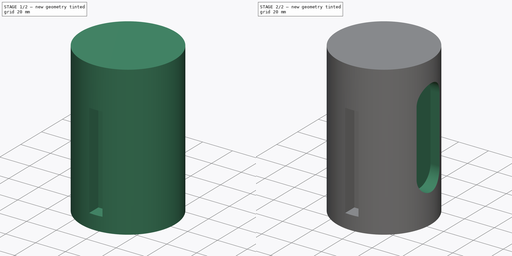
[diagram: build sequence overview — one tinted view per stage of 2, left to right]
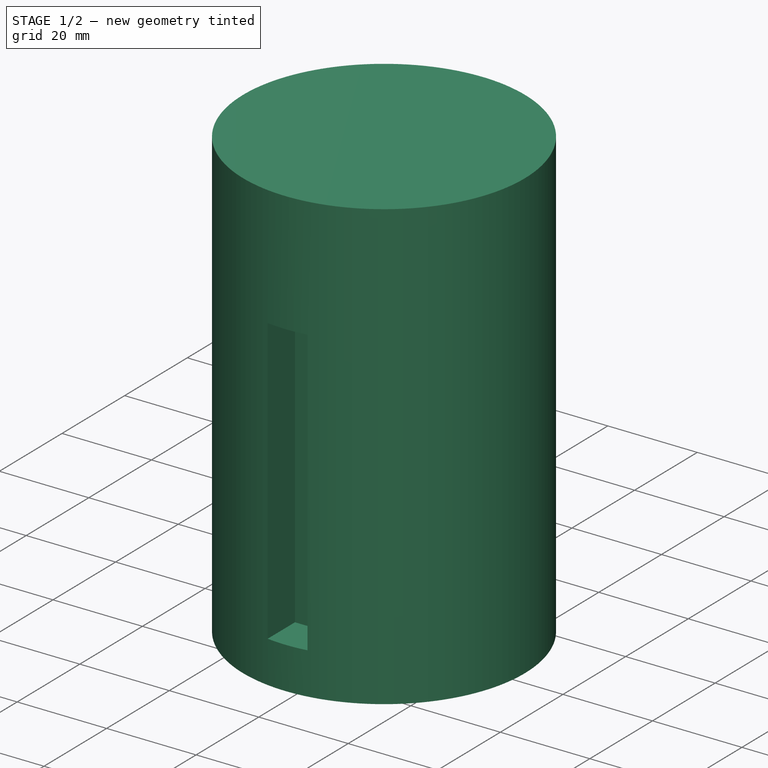
[diagram: stage 1 of 2 — iso view after this stage's code; geometry added in this stage tinted green]
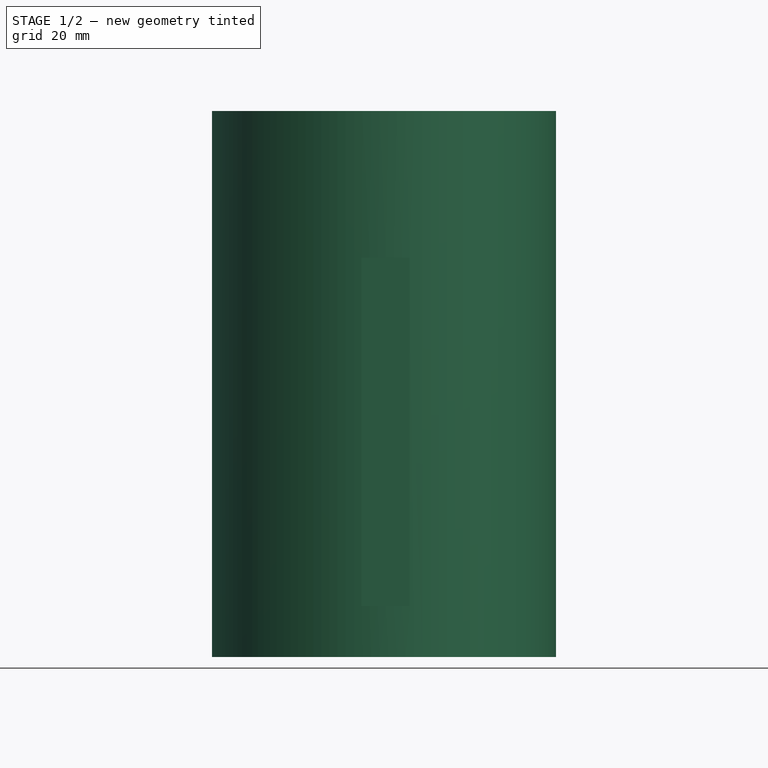
[diagram: stage 1 of 2 — front view after this stage's code; geometry added in this stage tinted green]
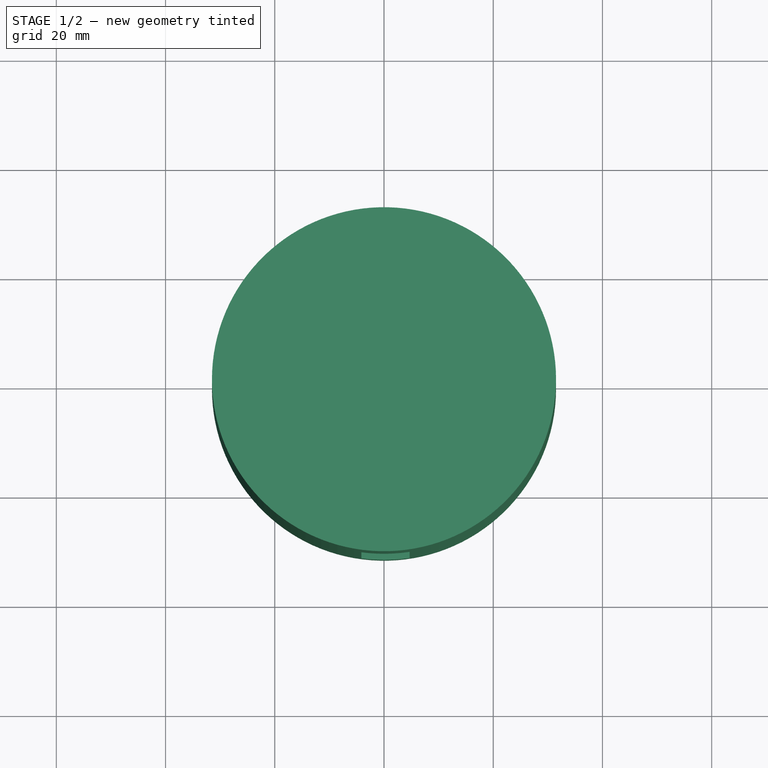
[diagram: stage 1 of 2 — top view after this stage's code; geometry added in this stage tinted green]
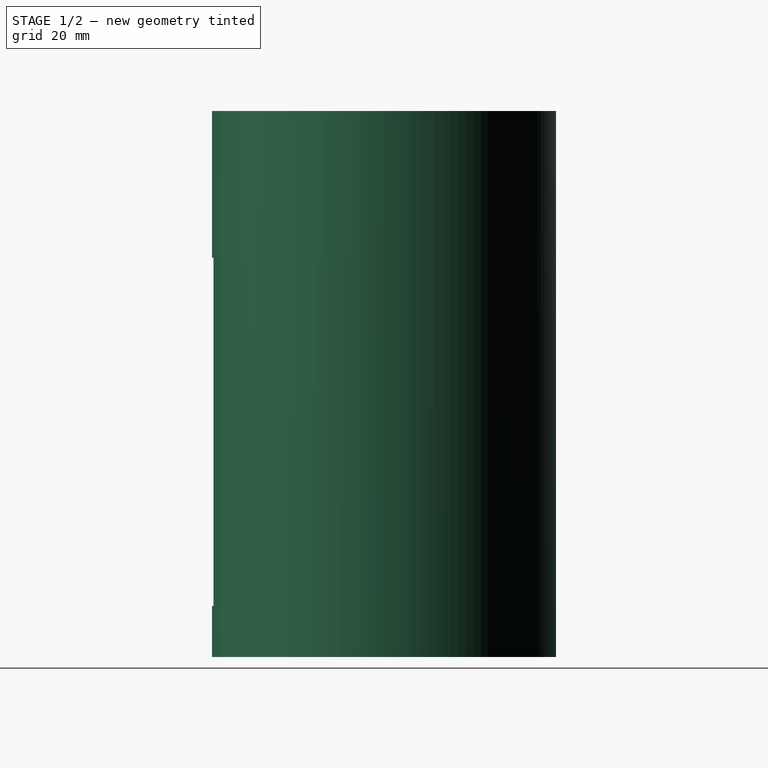
[diagram: stage 1 of 2 — right view after this stage's code; geometry added in this stage tinted green]
FCSTD DOCUMENT  (FreeCAD 0.21R33771 (Git))
Label: shponpaz
License: All rights reserved
LicenseURL: http://en.wikipedia.org/wiki/All_rights_reserved
objects: Sketcher::SketchObject×3, PartDesign::Pocket×2, PartDesign::Pad×1, PartDesign::Body×1
note: 10 computed .brp shape members not serialized (recipe doc carries the construction recipe); baked Part::Feature solids carry a one-line shape summary decoded from their .brp

FEATURE [Sketcher::SketchObject] Sketch
  FullyConstrained = false
  MapMode = 2
  Support = -> [Sketch]
  sketch-geometry (1):
    g0: Circle CenterX=0 CenterY=0 CenterZ=0 NormalX=0 NormalY=0 NormalZ=1 AngleXU=0 Radius=31.5019
  constraints (1):
    c: Coincident(g0,g-1)
FEATURE [PartDesign::Pad] Pad
  Direction = (0,0,1)
  Length = 100
  Length2 = 10
  Profile = -> Sketch
  ReferenceAxis = -> Sketch [N_Axis]
  Refine = true
  Type = 0
FEATURE [Sketcher::SketchObject] Sketch001
  AttachmentOffset = pos=(-2,0,31) rot=(0,0,1;0rad)
  FullyConstrained = false
  MapMode = 3
  Placement = pos=(-2,-31,6.9e-15) rot=(1,0,0;1.5708rad)
  Support = -> [Sketch]
  sketch-geometry (5):
    g0: LineSegment StartX=-2.14905 StartY=73.1214 StartZ=0 EndX=-2.14905 EndY=9.34768 EndZ=0
    g1: LineSegment StartX=-2.14905 StartY=9.34768 StartZ=0 EndX=6.70286 EndY=9.34768 EndZ=0
    g2: LineSegment StartX=6.70286 StartY=9.34768 StartZ=0 EndX=6.70286 EndY=73.1214 EndZ=0
    g3: LineSegment StartX=6.70286 StartY=73.1214 StartZ=0 EndX=-2.14905 EndY=73.1214 EndZ=0
    g4: GeomPoint X=2.27691 Y=41.2345 Z=0
  constraints (9):
    c: Coincident(g0,g1)
    c: Coincident(g1,g2)
    c: Coincident(g2,g3)
    c: Coincident(g3,g0)
    c: Horizontal(g1)
    c: Horizontal(g3)
    c: Vertical(g0)
    c: Vertical(g2)
    c: Symmetric(g1,g0,g4)
FEATURE [PartDesign::Pocket] Pocket
  AlongSketchNormal = false
  BaseFeature = -> Pad
  Direction = (0,1,-2e-16)
  Length = 17
  Length2 = 5
  Midplane = true
  Profile = -> Sketch001
  ReferenceAxis = -> Sketch001 [N_Axis]
  Refine = true
  Type = 0
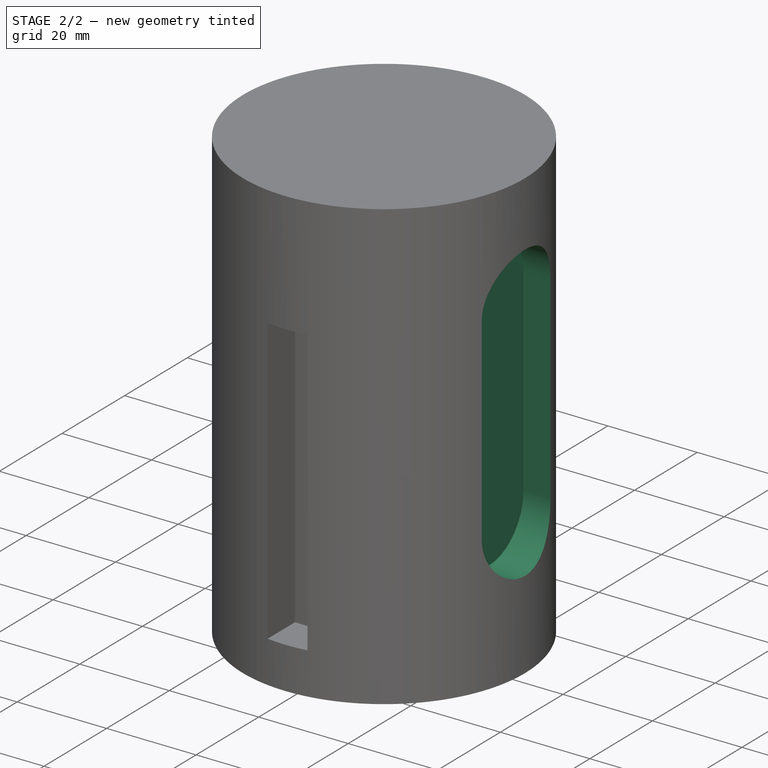
[diagram: stage 2 of 2 — iso view after this stage's code; geometry added in this stage tinted green]
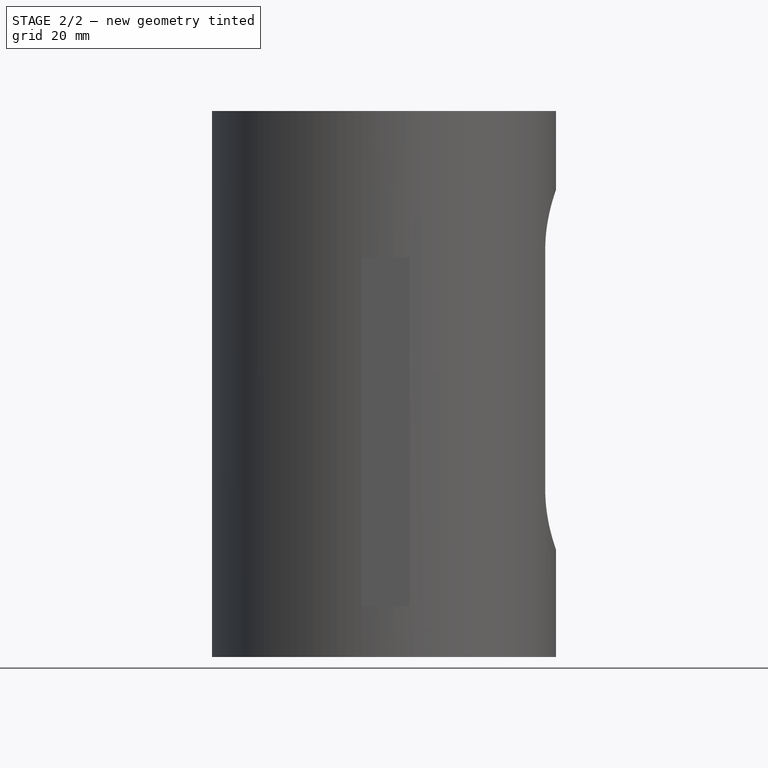
[diagram: stage 2 of 2 — front view after this stage's code; geometry added in this stage tinted green]
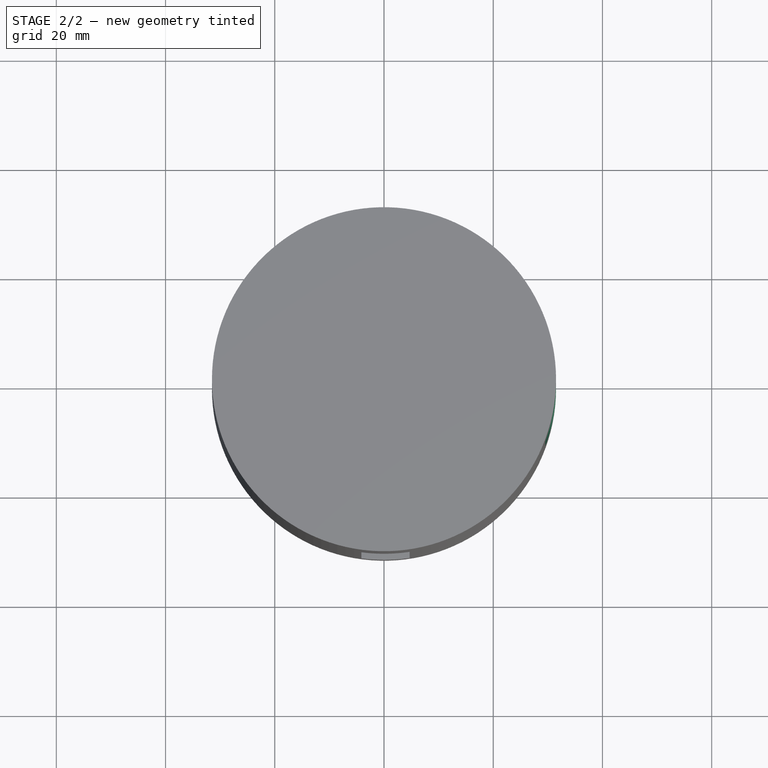
[diagram: stage 2 of 2 — top view after this stage's code; geometry added in this stage tinted green]
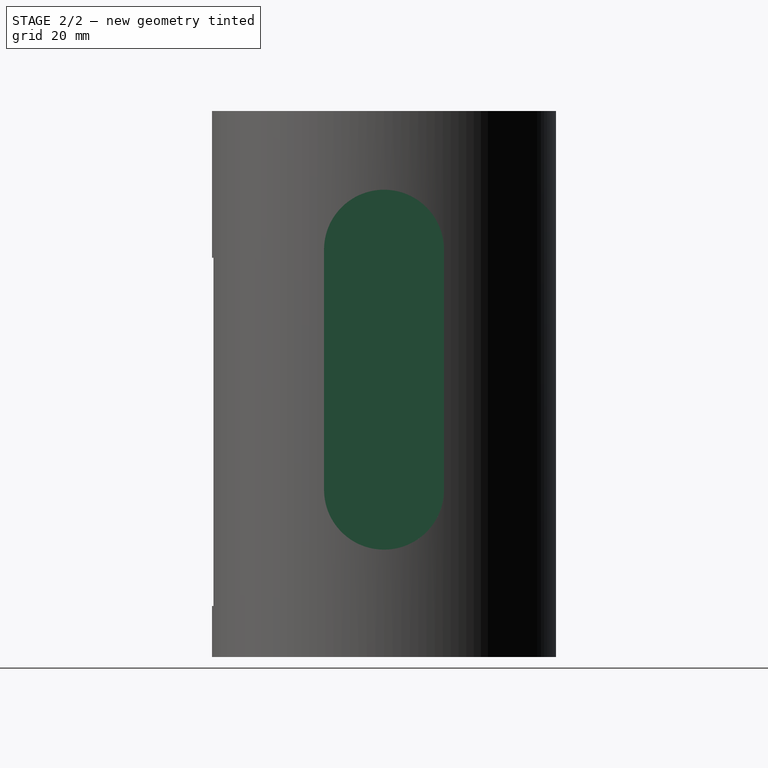
[diagram: stage 2 of 2 — right view after this stage's code; geometry added in this stage tinted green]
FEATURE [Sketcher::SketchObject] Sketch002
  AttachmentOffset = pos=(0,0,31) rot=(0,0,1;0rad)
  FullyConstrained = false
  MapMode = 5
  Placement = pos=(31,-6.9e-15,6.9e-15) rot=(0.57735,0.57735,0.57735;2.0944rad)
  Support = -> [YZ_Plane]
  sketch-geometry (4):
    g0: ArcOfCircle CenterX=0 CenterY=74.5899 CenterZ=0 NormalX=0 NormalY=0 NormalZ=1 AngleXU=0 Radius=10.9839 StartAngle=7.5e-15 EndAngle=3.14159
    g1: ArcOfCircle CenterX=3.295e-13 CenterY=30.6542 CenterZ=0 NormalX=0 NormalY=0 NormalZ=1 AngleXU=0 Radius=10.9839 StartAngle=3.14159 EndAngle=6.28319
    g2: LineSegment StartX=-10.9839 StartY=74.5899 StartZ=0 EndX=-10.9839 EndY=30.6542 EndZ=0
    g3: LineSegment StartX=10.9839 StartY=30.6542 StartZ=0 EndX=10.9839 EndY=74.5899 EndZ=0
  constraints (7):
    c: Tangent(g0,g2) = -1.5708
    c: Tangent(g2,g1) = -1.5708
    c: Tangent(g1,g3) = -1.5708
    c: Tangent(g3,g0) = -1.5708
    c: Equal(g0,g1)
    c: PointOnObject(g0,g-2)
    c: PointOnObject(g1,g-2)
FEATURE [PartDesign::Pocket] Pocket001
  BaseFeature = -> Pocket
  Direction = (-1,2e-16,-3e-16)
  Length = 15
  Length2 = 5
  Midplane = true
  Profile = -> Sketch002
  ReferenceAxis = -> Sketch002 [N_Axis]
  Refine = true
  Type = 0
FEATURE [PartDesign::Body] Body
  Group = -> [Sketch,Pad,Sketch001,Pocket,Sketch002,Pocket001]
  Origin = -> Origin
  Tip = -> Pocket001
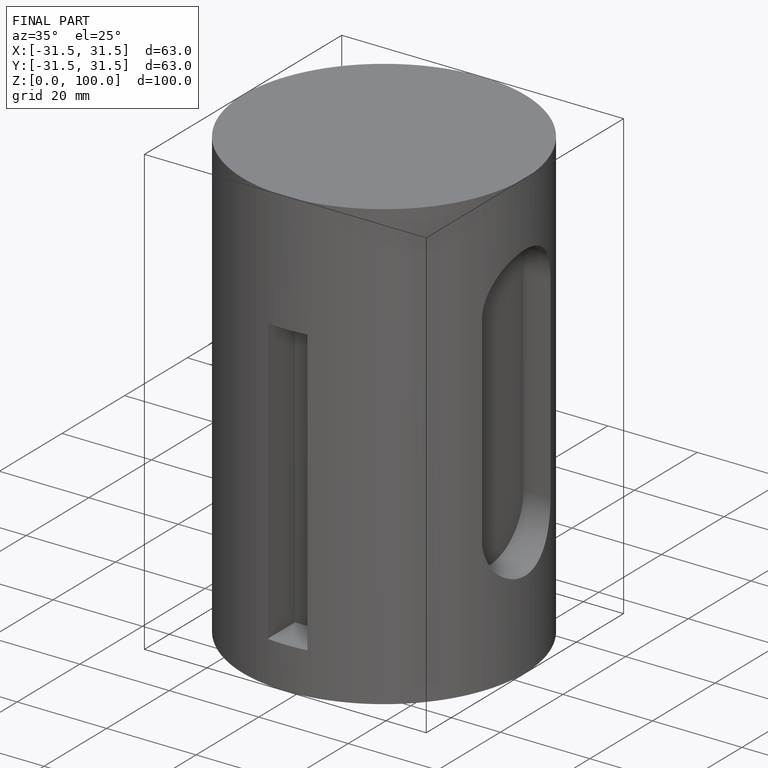
[diagram: finished part — iso view with bounding-box wireframe]
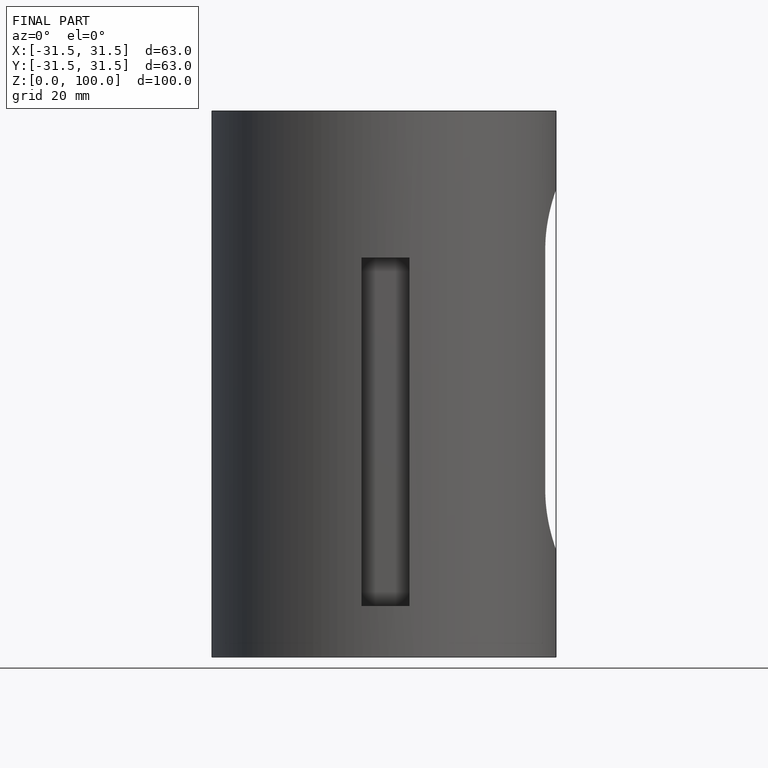
[diagram: finished part — front view with bounding-box wireframe]
